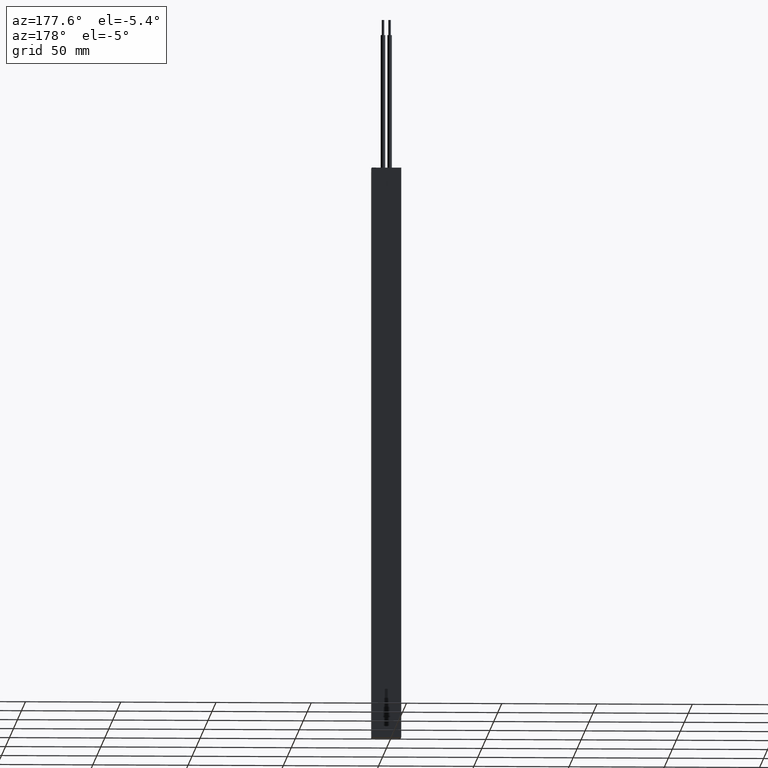
[diagram: clean part render]
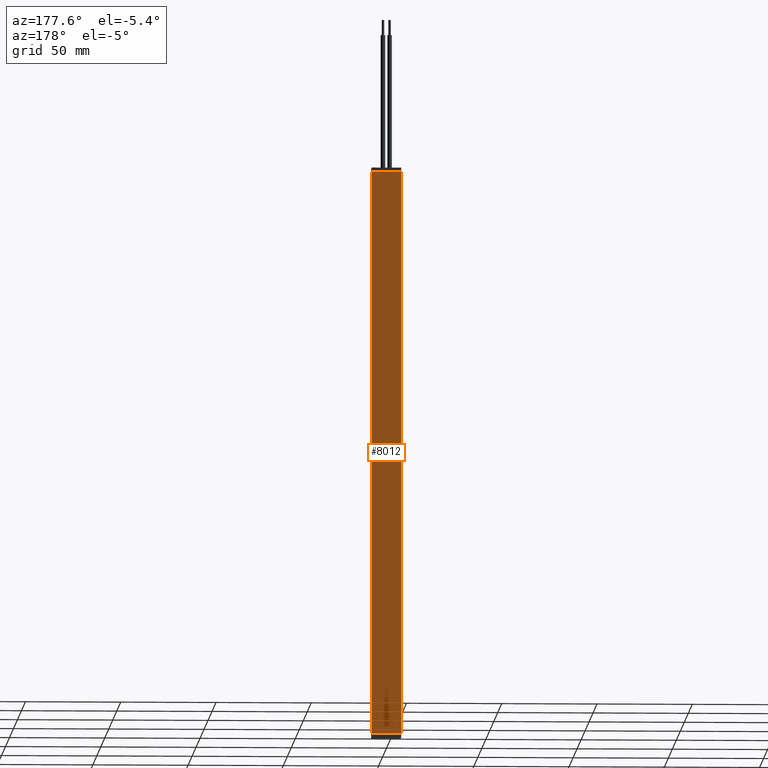
[diagram: same view with one face highlighted and labeled with its STEP entity id]
A machine part, auxiliary view. The second image highlights one B-rep face of the part: STEP entity #8012.
In plain terms, the highlighted planar face has unit normal (0, -1, 0).
Its self-contained STEP definition (entity closure, byte-faithful):
#325 = AXIS2_PLACEMENT_3D ( 'NONE', #11361, #7847, #3077 ) ;
#472 = ORIENTED_EDGE ( 'NONE', *, *, #8691, .F. ) ;
#719 = LINE ( 'NONE', #12238, #6344 ) ;
#745 = ORIENTED_EDGE ( 'NONE', *, *, #10201, .F. ) ;
#2017 = CARTESIAN_POINT ( 'NONE',  ( -7.700000000000002842, 0.000000000000000000, 148.0000000000000000 ) ) ;
#2848 = CARTESIAN_POINT ( 'NONE',  ( 7.700000000000002842, 0.000000000000000000, 148.0000000000000000 ) ) ;
#2912 = DIRECTION ( 'NONE',  ( -0.000000000000000000, -0.000000000000000000, -1.000000000000000000 ) ) ;
#3077 = DIRECTION ( 'NONE',  ( 0.000000000000000000, -0.000000000000000000, 1.000000000000000000 ) ) ;
#3213 = DIRECTION ( 'NONE',  ( 1.000000000000000000, 0.000000000000000000, 0.000000000000000000 ) ) ;
#3539 = EDGE_CURVE ( 'NONE', #12430, #5569, #719, .T. ) ;
#3830 = ORIENTED_EDGE ( 'NONE', *, *, #3539, .T. ) ;
#3902 = VECTOR ( 'NONE', #3213, 1000.000000000000000 ) ;
#4181 = PLANE ( 'NONE',  #325 ) ;
#4796 = VERTEX_POINT ( 'NONE', #2848 ) ;
#4883 = EDGE_CURVE ( 'NONE', #12539, #12430, #13144, .T. ) ;
#5569 = VERTEX_POINT ( 'NONE', #7924 ) ;
#6344 = VECTOR ( 'NONE', #7695, 1000.000000000000000 ) ;
#6511 = LINE ( 'NONE', #10087, #12485 ) ;
#6539 = FACE_OUTER_BOUND ( 'NONE', #8274, .T. ) ;
#7600 = CARTESIAN_POINT ( 'NONE',  ( -7.700000000000002842, 0.000000000000000000, 148.0000000000000000 ) ) ;
#7695 = DIRECTION ( 'NONE',  ( 1.000000000000000000, 0.000000000000000000, 0.000000000000000000 ) ) ;
#7847 = DIRECTION ( 'NONE',  ( 0.000000000000000000, 1.000000000000000000, 0.000000000000000000 ) ) ;
#7924 = CARTESIAN_POINT ( 'NONE',  ( 7.700000000000002842, 0.000000000000000000, -148.0000000000000000 ) ) ;
#8012 = ADVANCED_FACE ( 'NONE', ( #6539 ), #4181, .F. ) ;
#8274 = EDGE_LOOP ( 'NONE', ( #3830, #745, #472, #15113 ) ) ;
#8596 = LINE ( 'NONE', #2017, #3902 ) ;
#8691 = EDGE_CURVE ( 'NONE', #12539, #4796, #8596, .T. ) ;
#9095 = CARTESIAN_POINT ( 'NONE',  ( -7.700000000000002842, 0.000000000000000000, 148.0000000000000000 ) ) ;
#9925 = CARTESIAN_POINT ( 'NONE',  ( -7.700000000000002842, 0.000000000000000000, -148.0000000000000000 ) ) ;
#10087 = CARTESIAN_POINT ( 'NONE',  ( 7.700000000000002842, 0.000000000000000000, 148.0000000000000000 ) ) ;
#10201 = EDGE_CURVE ( 'NONE', #4796, #5569, #6511, .T. ) ;
#10418 = DIRECTION ( 'NONE',  ( -0.000000000000000000, -0.000000000000000000, -1.000000000000000000 ) ) ;
#11361 = CARTESIAN_POINT ( 'NONE',  ( -7.700000000000002842, 0.000000000000000000, 148.0000000000000000 ) ) ;
#12238 = CARTESIAN_POINT ( 'NONE',  ( -7.700000000000002842, 0.000000000000000000, -148.0000000000000000 ) ) ;
#12430 = VERTEX_POINT ( 'NONE', #9925 ) ;
#12485 = VECTOR ( 'NONE', #2912, 1000.000000000000000 ) ;
#12539 = VERTEX_POINT ( 'NONE', #7600 ) ;
#13144 = LINE ( 'NONE', #9095, #13892 ) ;
#13892 = VECTOR ( 'NONE', #10418, 1000.000000000000000 ) ;
#15113 = ORIENTED_EDGE ( 'NONE', *, *, #4883, .T. ) ;